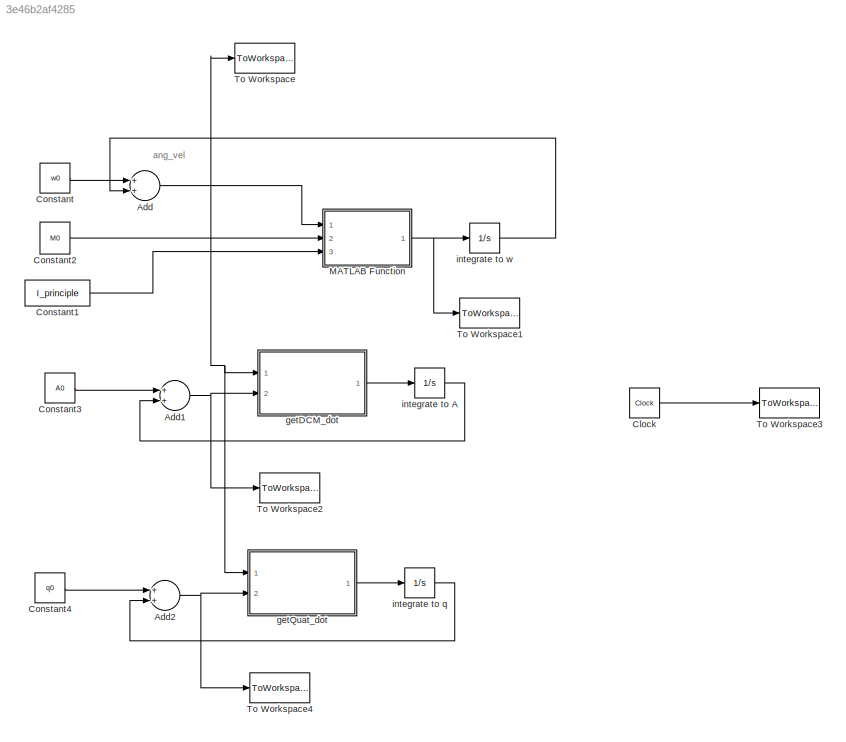
MODEL slx_3e46b2af4285
KIND model
CONFIG AbsTol = auto
CONFIG FixedStep = auto
CONFIG MaxStep = auto
CONFIG MinStep = auto
CONFIG RelTol = 1e-3
CONFIG SampleTimeConstraint = Unconstrained
CONFIG Solver = ode113
CONFIG SolverMode = Auto
CONFIG SolverName = ode113
CONFIG StartTime = 0.0
CONFIG StopTime = t_total
BLOCK [Sum] Add
  InputSameDT = off
  OutDataTypeStr = Inherit: Inherit via internal rule
  Ports = [2, 1]
  SaturateOnIntegerOverflow = off
BLOCK [Sum] Add1
  InputSameDT = off
  OutDataTypeStr = Inherit: Inherit via internal rule
  Ports = [2, 1]
  SaturateOnIntegerOverflow = off
BLOCK [Sum] Add2
  InputSameDT = off
  OutDataTypeStr = Inherit: Inherit via internal rule
  Ports = [2, 1]
  SaturateOnIntegerOverflow = off
BLOCK [Clock] Clock
BLOCK [Constant] Constant
  Value = w0
BLOCK [Constant] Constant1
  Value = I_principle
BLOCK [Constant] Constant2
  Value = M0
BLOCK [Constant] Constant3
  Value = A0
BLOCK [Constant] Constant4
  Value = q0
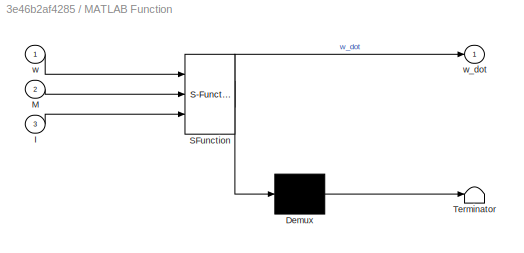
BLOCK [SubSystem] MATLAB Function
  ErrorFcn = Stateflow.Translate.translate
  PermitHierarchicalResolution = ExplicitOnly
  Ports = [3, 1]
  RequestExecContextInheritance = off
  SFBlockType = MATLAB Function
  TreatAsAtomicUnit = on
BLOCK [Demux] MATLAB Function/ Demux 
  Outputs = 1
  Ports = [1, 1]
BLOCK [S-Function] MATLAB Function/ SFunction 
  EnableBusSupport = on
  FunctionName = sf_sfun
  PortCounts = [3 2]
  Ports = [3, 2]
  Tag = Stateflow S-Function eulerSIM 2
BLOCK [Terminator] MATLAB Function/ Terminator 
BLOCK [Inport] MATLAB Function/I
  IconDisplay = Port number
  Port = 3
BLOCK [Inport] MATLAB Function/M
  IconDisplay = Port number
  Port = 2
BLOCK [Inport] MATLAB Function/w
  IconDisplay = Port number
BLOCK [Outport] MATLAB Function/w_dot
  IconDisplay = Port number
BLOCK [ToWorkspace] To Workspace
  FixptAsFi = on
  MaxDataPoints = inf
  Ports = [1]
  SampleTime = -1
  Save2DSignal = 3-D array (concatenate along third dimension)
  VariableName = ang_vel
BLOCK [ToWorkspace] To Workspace1
  FixptAsFi = on
  MaxDataPoints = inf
  Ports = [1]
  SampleTime = -1
  Save2DSignal = 3-D array (concatenate along third dimension)
  VariableName = ang_accel
BLOCK [ToWorkspace] To Workspace2
  FixptAsFi = on
  MaxDataPoints = inf
  Ports = [1]
  SampleTime = -1
  Save2DSignal = 3-D array (concatenate along third dimension)
  VariableName = A_DCM
BLOCK [ToWorkspace] To Workspace3
  FixptAsFi = on
  MaxDataPoints = inf
  Ports = [1]
  SampleTime = -1
  Save2DSignal = 3-D array (concatenate along third dimension)
  VariableName = tout
BLOCK [ToWorkspace] To Workspace4
  FixptAsFi = on
  MaxDataPoints = inf
  Ports = [1]
  SampleTime = -1
  Save2DSignal = 3-D array (concatenate along third dimension)
  VariableName = quat
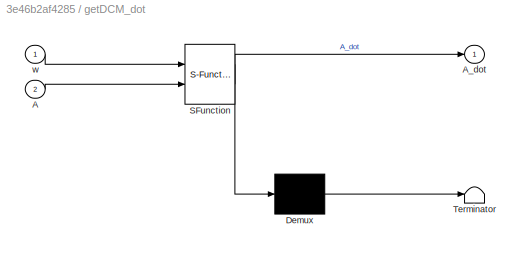
BLOCK [SubSystem] getDCM_dot
  ErrorFcn = Stateflow.Translate.translate
  PermitHierarchicalResolution = ExplicitOnly
  Ports = [2, 1]
  RequestExecContextInheritance = off
  SFBlockType = MATLAB Function
  TreatAsAtomicUnit = on
BLOCK [Demux] getDCM_dot/ Demux 
  Outputs = 1
  Ports = [1, 1]
BLOCK [S-Function] getDCM_dot/ SFunction 
  EnableBusSupport = on
  FunctionName = sf_sfun
  PortCounts = [2 2]
  Ports = [2, 2]
  Tag = Stateflow S-Function eulerSIM 1
BLOCK [Terminator] getDCM_dot/ Terminator 
BLOCK [Inport] getDCM_dot/A
  IconDisplay = Port number
  Port = 2
BLOCK [Outport] getDCM_dot/A_dot
  IconDisplay = Port number
BLOCK [Inport] getDCM_dot/w
  IconDisplay = Port number
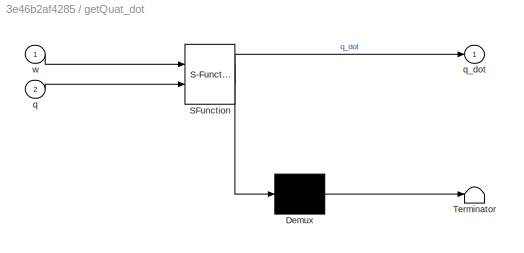
BLOCK [SubSystem] getQuat_dot
  ErrorFcn = Stateflow.Translate.translate
  PermitHierarchicalResolution = ExplicitOnly
  Ports = [2, 1]
  RequestExecContextInheritance = off
  SFBlockType = MATLAB Function
  TreatAsAtomicUnit = on
BLOCK [Demux] getQuat_dot/ Demux 
  Outputs = 1
  Ports = [1, 1]
BLOCK [S-Function] getQuat_dot/ SFunction 
  EnableBusSupport = on
  FunctionName = sf_sfun
  PortCounts = [2 2]
  Ports = [2, 2]
  Tag = Stateflow S-Function eulerSIM 3
BLOCK [Terminator] getQuat_dot/ Terminator 
BLOCK [Inport] getQuat_dot/q
  IconDisplay = Port number
  Port = 2
BLOCK [Outport] getQuat_dot/q_dot
  IconDisplay = Port number
BLOCK [Inport] getQuat_dot/w
  IconDisplay = Port number
BLOCK [Integrator] integrate to A
  Ports = [1, 1]
BLOCK [Integrator] integrate to q
  Ports = [1, 1]
BLOCK [Integrator] integrate to w
  Ports = [1, 1]
ANNOTATION (root): ang_vel
NET Add1:1 -> To Workspace2:1, getDCM_dot:2
NET Add2:1 -> To Workspace4:1, getQuat_dot:2
NET Add:1 -> MATLAB Function:1, To Workspace:1, getDCM_dot:1, getQuat_dot:1
LINE Clock:1 -> To Workspace3:1
LINE Constant1:1 -> MATLAB Function:3
LINE Constant2:1 -> MATLAB Function:2
LINE Constant3:1 -> Add1:1
LINE Constant4:1 -> Add2:1
LINE Constant:1 -> Add:1
NET MATLAB Function:1 -> To Workspace1:1, integrate to w:1
LINE getDCM_dot:1 -> integrate to A:1
LINE getQuat_dot:1 -> integrate to q:1
LINE integrate to A:1 -> Add1:2
LINE integrate to q:1 -> Add2:2
LINE integrate to w:1 -> Add:2
note: NET lines group one-source signal fan-out (src -> all destinations, sorted); 1:1 wires keep LINE
CHART getDCM_dot states=1 transitions=1
  STATE_LABEL 'eML_blk_kernel()'
  STATE_LABEL 'SCRIPT:\nfunction A_dot   = getDCM_dot( w, A )\n%GETDCM_DOT calculate time-derivative of DCM\n% w is ang vel of body axes w.r.t. inertial\nA_dot = -[0 -w(3) w(2); w(3) 0 -w(1); -w(2) w(1) 0]*A;\n\nend\n\n'
CHART MATLAB Function states=1 transitions=1
  STATE_LABEL 'eML_blk_kernel()'
  STATE_LABEL 'SCRIPT:\nfunction w_dot = eulerRHS(w, M, I)\n% principle axis euler eq\n% w is 3x1 rotational velocity\n% M is 3x1 external torques\nIx = I(1,1); Iy = I(2,2); Iz = I(3,3);\nw_dot = zeros(3,1);\nw_dot(1) = (M(1) - (Iz - Iy)*w(2)*w(3) ) / Ix;\nw_dot(2) = (M(2) - (Ix - Iz)*w(1)*w(3) ) / Iy;\nw_dot(3) = (M(3) - (Iy - Ix)*w(1)*w(2) ) / Iz;\nend'
CHART getQuat_dot states=1 transitions=1
  STATE_LABEL 'eML_blk_kernel()'
  STATE_LABEL 'SCRIPT:\nfunction q_dot   = getQuat_dot( w, q )\n%GETDCM_DOT calculate time-derivative of DCM\n% w is ang vel of body axes w.r.t. inertial\nB = [0 w(3) -w(2) w(1); -w(3) 0 w(1) w(2); w(2) -w(1) 0 w(3); ...\n  -w(1) -w(2) -w(3) 0];\nq_dot = 0.5 * B * q;\nend\n\n'
